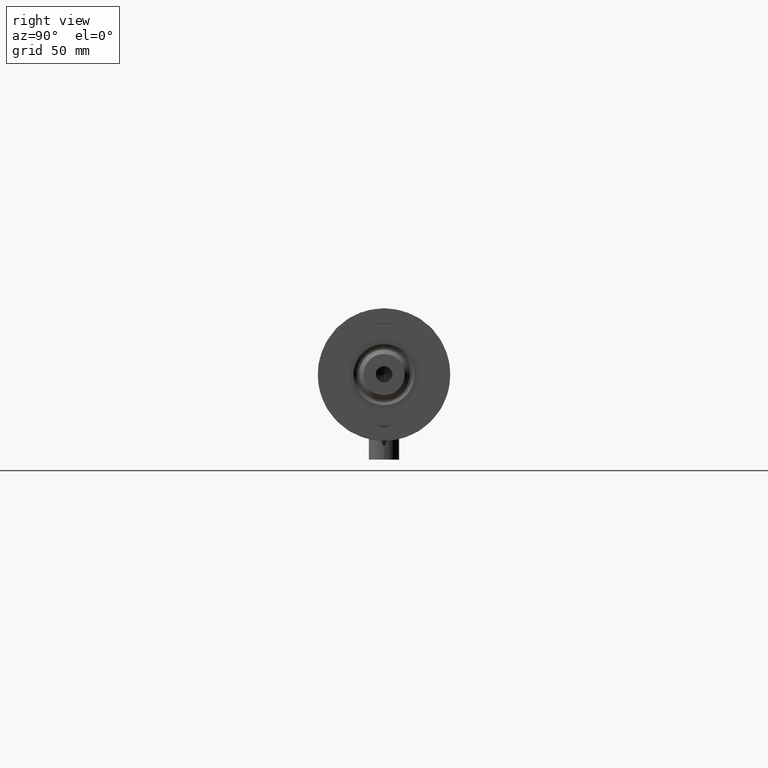
[diagram: clean part render]
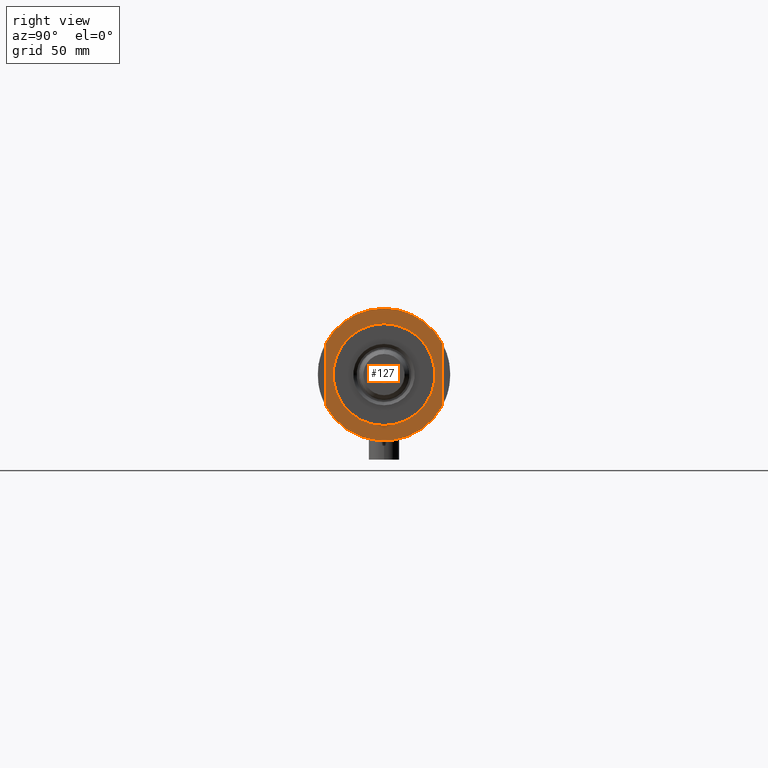
[diagram: same view with one face highlighted and labeled with its STEP entity id]
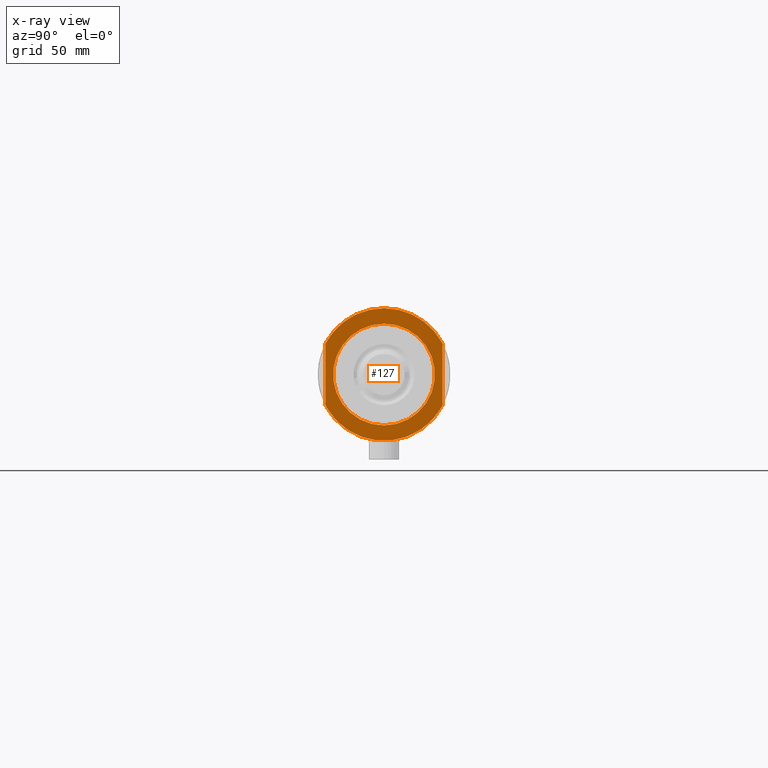
[diagram: x-ray of the same camera — body ghosted, the highlighted face saturated]
A machine part, right view. The second image highlights one B-rep face of the part: STEP entity #127.
The next image is the same camera in x-ray: the body ghosted, the highlighted face saturated — about 0% of this face is hidden behind the body in this view.
In plain terms, the highlighted planar face has unit normal (1, 0, -0).
Its self-contained STEP definition (entity closure, byte-faithful):
#98 = DIRECTION ( 'NONE',  ( 1.000000000000000000, 0.000000000000000000, -0.000000000000000000 ) ) ;
#127 = ADVANCED_FACE ( 'NONE', ( #1596, #1956 ), #818, .T. ) ;
#134 = AXIS2_PLACEMENT_3D ( 'NONE', #4182, #808, #1613 ) ;
#526 = CIRCLE ( 'NONE', #3199, 26.00000000000000355 ) ;
#728 = DIRECTION ( 'NONE',  ( 1.000000000000000000, 0.000000000000000000, 0.000000000000000000 ) ) ;
#730 = EDGE_LOOP ( 'NONE', ( #4328, #3140, #997, #1230, #3316 ) ) ;
#756 = EDGE_LOOP ( 'NONE', ( #2832, #3366 ) ) ;
#808 = DIRECTION ( 'NONE',  ( 0.000000000000000000, 0.000000000000000000, 1.000000000000000000 ) ) ;
#818 = PLANE ( 'NONE',  #3250 ) ;
#899 = AXIS2_PLACEMENT_3D ( 'NONE', #2325, #1947, #4705 ) ;
#997 = ORIENTED_EDGE ( 'NONE', *, *, #1020, .F. ) ;
#1008 = CARTESIAN_POINT ( 'NONE',  ( -12.12435565298214613, 23.00000000000000355, 15.50000000000000000 ) ) ;
#1020 = EDGE_CURVE ( 'NONE', #4392, #2345, #4354, .T. ) ;
#1099 = DIRECTION ( 'NONE',  ( 1.000000000000000000, 0.000000000000000000, 0.000000000000000000 ) ) ;
#1098 = DIRECTION ( 'NONE',  ( -1.000000000000000000, -0.000000000000000000, -0.000000000000000000 ) ) ;
#1173 = DIRECTION ( 'NONE',  ( 0.000000000000000000, 0.000000000000000000, 1.000000000000000000 ) ) ;
#1230 = ORIENTED_EDGE ( 'NONE', *, *, #4557, .T. ) ;
#1313 = DIRECTION ( 'NONE',  ( 1.000000000000000000, 0.000000000000000000, 0.000000000000000000 ) ) ;
#1404 = CARTESIAN_POINT ( 'NONE',  ( 12.12435565298215323, -22.99999999999999645, 15.50000000000000000 ) ) ;
#1435 = CIRCLE ( 'NONE', #4584, 20.00000000000000000 ) ;
#1474 = CARTESIAN_POINT ( 'NONE',  ( -20.00000000000000000, 2.449293598294706513E-15, 15.50000000000000000 ) ) ;
#1507 = EDGE_CURVE ( 'NONE', #3507, #4446, #1435, .T. ) ;
#1596 = FACE_BOUND ( 'NONE', #756, .T. ) ;
#1613 = DIRECTION ( 'NONE',  ( 1.000000000000000000, 0.000000000000000000, 0.000000000000000000 ) ) ;
#1706 = CARTESIAN_POINT ( 'NONE',  ( 20.00000000000000000, 0.000000000000000000, 15.50000000000000000 ) ) ;
#1802 = CARTESIAN_POINT ( 'NONE',  ( -12.12435565298215145, 23.00000000000000355, 15.50000000000000000 ) ) ;
#1947 = DIRECTION ( 'NONE',  ( 0.000000000000000000, 0.000000000000000000, 1.000000000000000000 ) ) ;
#1956 = FACE_OUTER_BOUND ( 'NONE', #730, .T. ) ;
#2070 = EDGE_CURVE ( 'NONE', #4446, #3507, #4055, .T. ) ;
#2190 = CARTESIAN_POINT ( 'NONE',  ( 0.000000000000000000, 0.000000000000000000, 15.50000000000000000 ) ) ;
#2209 = DIRECTION ( 'NONE',  ( -0.000000000000000000, -0.000000000000000000, -1.000000000000000000 ) ) ;
#2217 = DIRECTION ( 'NONE',  ( -0.000000000000000000, -0.000000000000000000, -1.000000000000000000 ) ) ;
#2226 = CARTESIAN_POINT ( 'NONE',  ( 12.12435565298214790, 23.00000000000000355, 15.50000000000000000 ) ) ;
#2238 = VECTOR ( 'NONE', #1098, 1000.000000000000000 ) ;
#2260 = LINE ( 'NONE', #4479, #2238 ) ;
#2323 = EDGE_CURVE ( 'NONE', #2707, #2345, #3024, .T. ) ;
#2325 = CARTESIAN_POINT ( 'NONE',  ( 0.000000000000000000, 0.000000000000000000, 15.50000000000000000 ) ) ;
#2345 = VERTEX_POINT ( 'NONE', #2226 ) ;
#2707 = VERTEX_POINT ( 'NONE', #1404 ) ;
#2731 = CARTESIAN_POINT ( 'NONE',  ( -12.12435565298215323, -22.99999999999999645, 15.50000000000000000 ) ) ;
#2832 = ORIENTED_EDGE ( 'NONE', *, *, #1507, .T. ) ;
#2874 = EDGE_CURVE ( 'NONE', #2707, #3841, #2260, .T. ) ;
#3024 = CIRCLE ( 'NONE', #899, 26.00000000000000355 ) ;
#3140 = ORIENTED_EDGE ( 'NONE', *, *, #2323, .T. ) ;
#3199 = AXIS2_PLACEMENT_3D ( 'NONE', #3218, #4678, #1313 ) ;
#3218 = CARTESIAN_POINT ( 'NONE',  ( 0.000000000000000000, 0.000000000000000000, 15.50000000000000000 ) ) ;
#3250 = AXIS2_PLACEMENT_3D ( 'NONE', #4558, #1173, #98 ) ;
#3260 = VECTOR ( 'NONE', #1099, 1000.000000000000000 ) ;
#3316 = ORIENTED_EDGE ( 'NONE', *, *, #3514, .T. ) ;
#3366 = ORIENTED_EDGE ( 'NONE', *, *, #2070, .T. ) ;
#3507 = VERTEX_POINT ( 'NONE', #1706 ) ;
#3514 = EDGE_CURVE ( 'NONE', #4075, #3841, #526, .T. ) ;
#3693 = CIRCLE ( 'NONE', #134, 26.00000000000000355 ) ;
#3715 = CARTESIAN_POINT ( 'NONE',  ( 0.000000000000000000, 0.000000000000000000, 15.50000000000000000 ) ) ;
#3841 = VERTEX_POINT ( 'NONE', #2731 ) ;
#4055 = CIRCLE ( 'NONE', #4356, 20.00000000000000000 ) ;
#4075 = VERTEX_POINT ( 'NONE', #4856 ) ;
#4096 = DIRECTION ( 'NONE',  ( 1.000000000000000000, 0.000000000000000000, 0.000000000000000000 ) ) ;
#4182 = CARTESIAN_POINT ( 'NONE',  ( 0.000000000000000000, 0.000000000000000000, 15.50000000000000000 ) ) ;
#4328 = ORIENTED_EDGE ( 'NONE', *, *, #2874, .F. ) ;
#4354 = LINE ( 'NONE', #1802, #3260 ) ;
#4356 = AXIS2_PLACEMENT_3D ( 'NONE', #3715, #2217, #728 ) ;
#4392 = VERTEX_POINT ( 'NONE', #1008 ) ;
#4446 = VERTEX_POINT ( 'NONE', #1474 ) ;
#4479 = CARTESIAN_POINT ( 'NONE',  ( -12.12435565298215145, -22.99999999999999645, 15.50000000000000000 ) ) ;
#4557 = EDGE_CURVE ( 'NONE', #4392, #4075, #3693, .T. ) ;
#4558 = CARTESIAN_POINT ( 'NONE',  ( 0.000000000000000000, 0.000000000000000000, 15.50000000000000000 ) ) ;
#4584 = AXIS2_PLACEMENT_3D ( 'NONE', #2190, #2209, #4096 ) ;
#4678 = DIRECTION ( 'NONE',  ( 0.000000000000000000, 0.000000000000000000, 1.000000000000000000 ) ) ;
#4705 = DIRECTION ( 'NONE',  ( 1.000000000000000000, 0.000000000000000000, 0.000000000000000000 ) ) ;
#4856 = CARTESIAN_POINT ( 'NONE',  ( -26.00000000000000355, 0.000000000000000000, 15.50000000000000000 ) ) ;